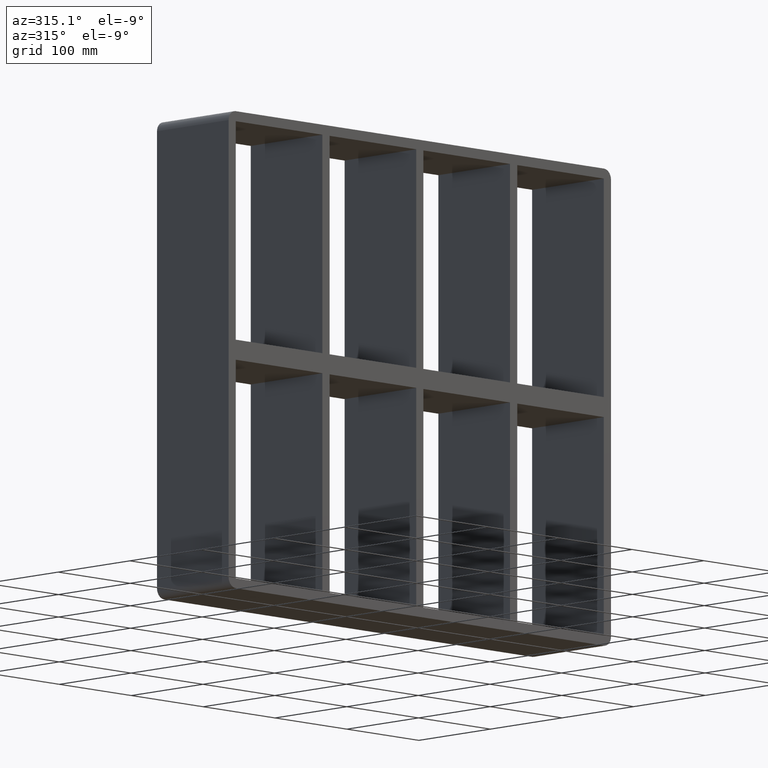
[diagram: clean part render]
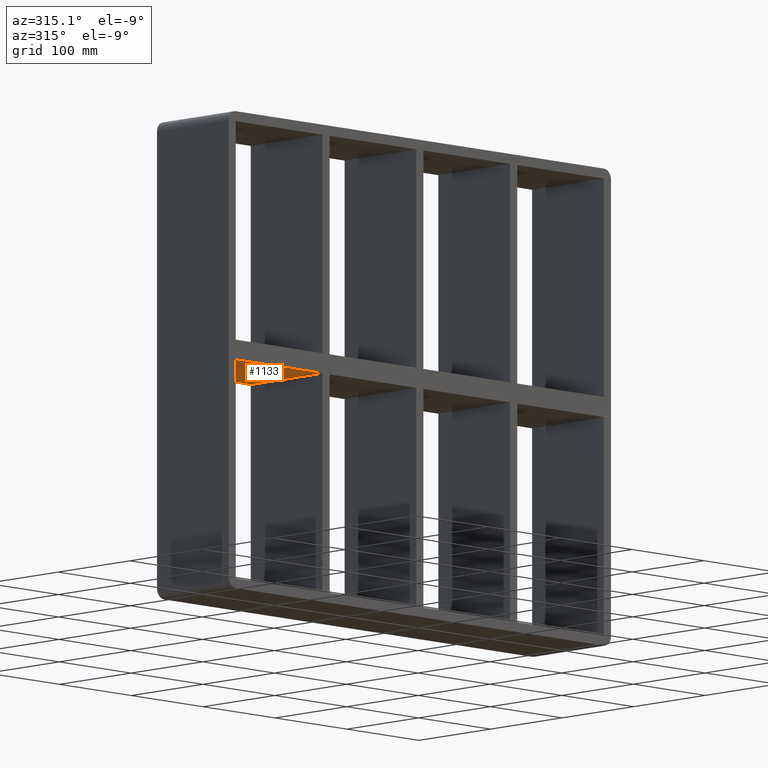
[diagram: same view with one face highlighted and labeled with its STEP entity id]
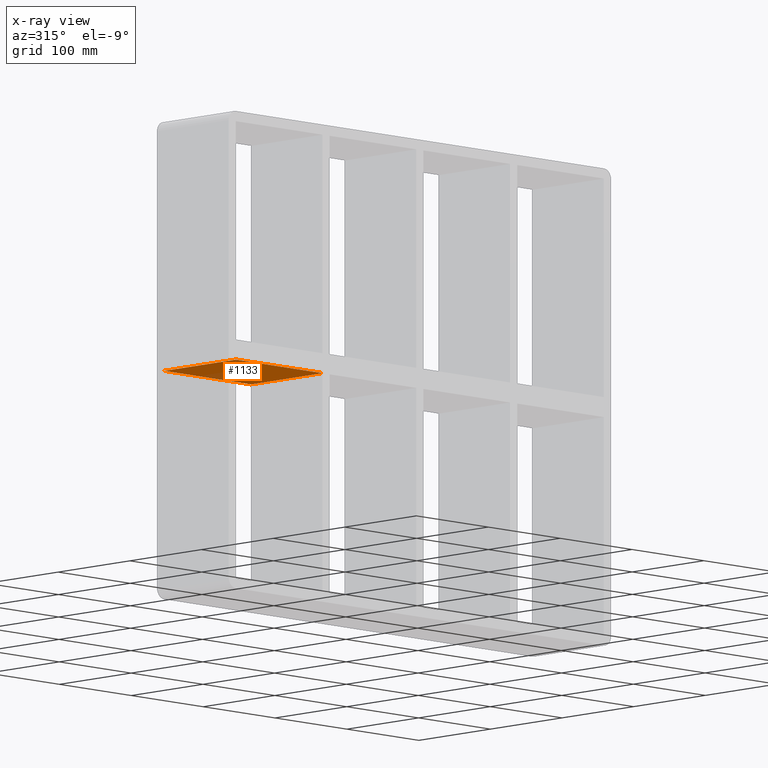
[diagram: x-ray of the same camera — body ghosted, the highlighted face saturated]
A machine part, auxiliary view. The second image highlights one B-rep face of the part: STEP entity #1133.
The next image is the same camera in x-ray: the body ghosted, the highlighted face saturated — about 11% of this face is hidden behind the body in this view.
In plain terms, the highlighted planar face has unit normal (0, 0, -1).
Its self-contained STEP definition (entity closure, byte-faithful):
#694=CARTESIAN_POINT('',(-135.50000000000125,-3.0,-10.000000000015589));
#695=VERTEX_POINT('',#694);
#696=CARTESIAN_POINT('',(-255.99999999999966,-3.0,-10.000000000015632));
#697=VERTEX_POINT('',#696);
#698=CARTESIAN_POINT('',(-135.50000000000125,-3.0,-10.000000000015589));
#699=DIRECTION('',(-1.0,0.0,0.0));
#700=VECTOR('',#699,120.49999999999841);
#701=LINE('',#698,#700);
#702=EDGE_CURVE('',#695,#697,#701,.T.);
#960=CARTESIAN_POINT('',(-255.99999999999966,97.0,-10.000000000015632));
#961=VERTEX_POINT('',#960);
#978=CARTESIAN_POINT('',(-135.50000000000125,97.0,-10.000000000015589));
#979=VERTEX_POINT('',#978);
#986=CARTESIAN_POINT('',(-135.50000000000125,97.0,-10.000000000015589));
#987=DIRECTION('',(-1.0,0.0,0.0));
#988=VECTOR('',#987,120.49999999999841);
#989=LINE('',#986,#988);
#990=EDGE_CURVE('',#979,#961,#989,.T.);
#1112=CARTESIAN_POINT('',(256.00000000000364,-3.0,-10.000000000015453));
#1113=DIRECTION('',(0.0,0.0,-1.0));
#1114=DIRECTION('',(-1.0,0.0,0.0));
#1115=AXIS2_PLACEMENT_3D('',#1112,#1113,#1114);
#1116=PLANE('',#1115);
#1117=CARTESIAN_POINT('',(-135.50000000000125,-3.0,-10.000000000015595));
#1118=DIRECTION('',(0.0,1.0,0.0));
#1119=VECTOR('',#1118,100.0);
#1120=LINE('',#1117,#1119);
#1121=EDGE_CURVE('',#695,#979,#1120,.T.);
#1122=ORIENTED_EDGE('',*,*,#1121,.F.);
#1123=ORIENTED_EDGE('',*,*,#702,.T.);
#1124=CARTESIAN_POINT('',(-256.0,97.0,-10.000000000015634));
#1125=DIRECTION('',(0.0,-1.0,0.0));
#1126=VECTOR('',#1125,100.0);
#1127=LINE('',#1124,#1126);
#1128=EDGE_CURVE('',#961,#697,#1127,.T.);
#1129=ORIENTED_EDGE('',*,*,#1128,.F.);
#1130=ORIENTED_EDGE('',*,*,#990,.F.);
#1131=EDGE_LOOP('',(#1122,#1123,#1129,#1130));
#1132=FACE_OUTER_BOUND('',#1131,.T.);
#1133=ADVANCED_FACE('',(#1132),#1116,.T.);